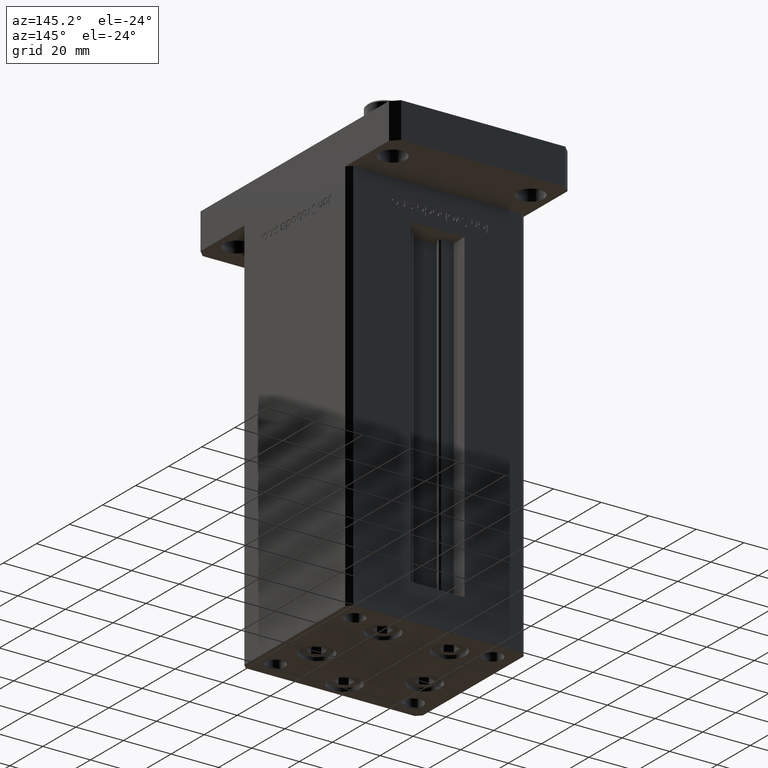
[diagram: clean part render]
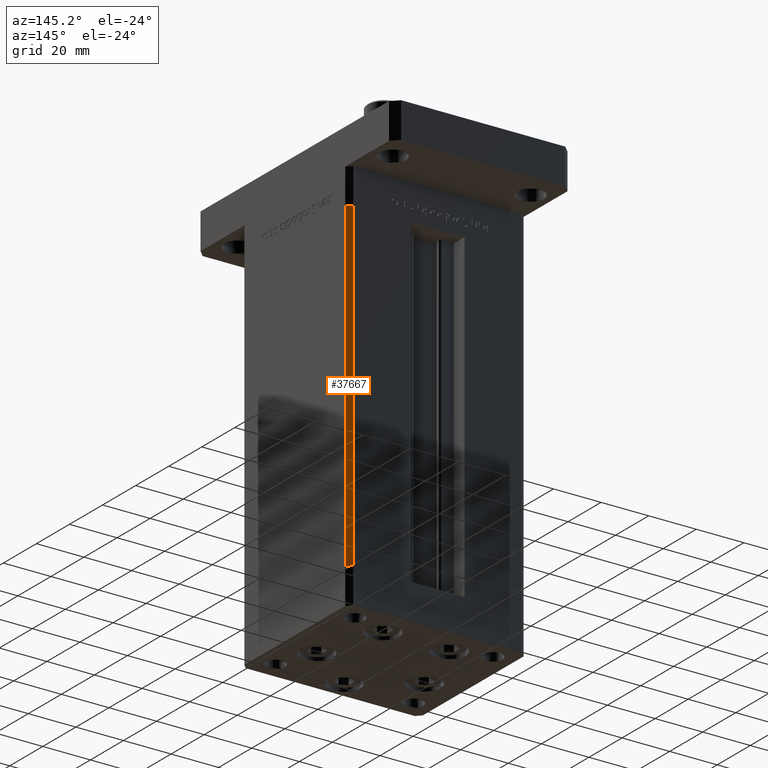
[diagram: same view with one face highlighted and labeled with its STEP entity id]
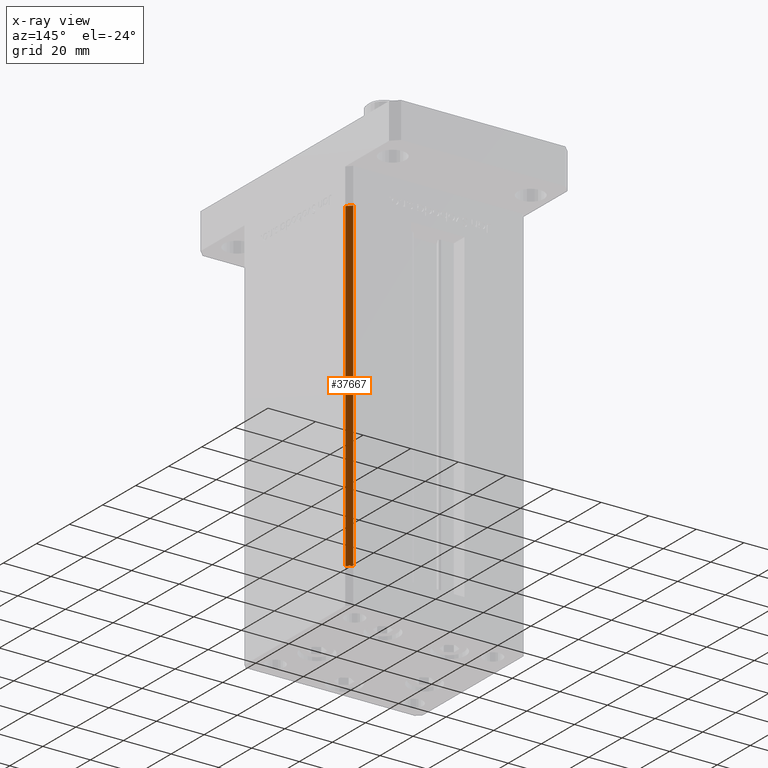
[diagram: x-ray of the same camera — body ghosted, the highlighted face saturated]
A machine part, auxiliary view. The second image highlights one B-rep face of the part: STEP entity #37667.
The next image is the same camera in x-ray: the body ghosted, the highlighted face saturated — about 0% of this face is hidden behind the body in this view.
In plain terms, the highlighted planar face has unit normal (0.7071, 0.7071, 0).
Its self-contained STEP definition (entity closure, byte-faithful):
#296 = DIRECTION ( 'NONE',  ( 0.7071067811865451302, 0.7071067811865500152, -0.000000000000000000 ) ) ;
#1226 = ORIENTED_EDGE ( 'NONE', *, *, #4799, .T. ) ;
#1324 = VECTOR ( 'NONE', #43741, 1000.000000000000000 ) ;
#4728 = ORIENTED_EDGE ( 'NONE', *, *, #17547, .F. ) ;
#4799 = EDGE_CURVE ( 'NONE', #29821, #20999, #52788, .T. ) ;
#7502 = VECTOR ( 'NONE', #17471, 1000.000000000000114 ) ;
#10610 = CARTESIAN_POINT ( 'NONE',  ( 37.50000000000000711, 30.50000000000000000, 136.0000000000000000 ) ) ;
#11270 = DIRECTION ( 'NONE',  ( 0.7071067811865500152, -0.7071067811865451302, 0.000000000000000000 ) ) ;
#11681 = ORIENTED_EDGE ( 'NONE', *, *, #27561, .T. ) ;
#16964 = FACE_OUTER_BOUND ( 'NONE', #25013, .T. ) ;
#17471 = DIRECTION ( 'NONE',  ( 0.7071067811865500152, -0.7071067811865451302, 0.000000000000000000 ) ) ;
#17547 = EDGE_CURVE ( 'NONE', #43366, #21806, #18291, .T. ) ;
#18291 = LINE ( 'NONE', #34946, #7502 ) ;
#20858 = VECTOR ( 'NONE', #11270, 1000.000000000000114 ) ;
#20999 = VERTEX_POINT ( 'NONE', #27219 ) ;
#21806 = VERTEX_POINT ( 'NONE', #43301 ) ;
#21887 = CARTESIAN_POINT ( 'NONE',  ( 35.50000000000000000, 32.49999999999999289, 136.0000000000000000 ) ) ;
#24366 = DIRECTION ( 'NONE',  ( -0.7071067811865500152, 0.7071067811865451302, 0.000000000000000000 ) ) ;
#25013 = EDGE_LOOP ( 'NONE', ( #4728, #34650, #1226, #11681 ) ) ;
#27083 = CARTESIAN_POINT ( 'NONE',  ( 35.50000000000000000, 32.49999999999999289, 136.0000000000000000 ) ) ;
#27219 = CARTESIAN_POINT ( 'NONE',  ( 37.50000000000000711, 30.50000000000000000, 136.0000000000000000 ) ) ;
#27301 = EDGE_CURVE ( 'NONE', #29821, #43366, #31168, .T. ) ;
#27561 = EDGE_CURVE ( 'NONE', #20999, #21806, #51047, .T. ) ;
#29821 = VERTEX_POINT ( 'NONE', #21887 ) ;
#31168 = LINE ( 'NONE', #27083, #1324 ) ;
#33071 = AXIS2_PLACEMENT_3D ( 'NONE', #45389, #296, #24366 ) ;
#34650 = ORIENTED_EDGE ( 'NONE', *, *, #27301, .F. ) ;
#34946 = CARTESIAN_POINT ( 'NONE',  ( 35.50000000000000000, 32.49999999999999289, 0.000000000000000000 ) ) ;
#36653 = PLANE ( 'NONE',  #33071 ) ;
#37667 = ADVANCED_FACE ( 'NONE', ( #16964 ), #36653, .T. ) ;
#43301 = CARTESIAN_POINT ( 'NONE',  ( 37.50000000000000711, 30.50000000000000000, 0.000000000000000000 ) ) ;
#43366 = VERTEX_POINT ( 'NONE', #53149 ) ;
#43741 = DIRECTION ( 'NONE',  ( -0.000000000000000000, -0.000000000000000000, -1.000000000000000000 ) ) ;
#43934 = DIRECTION ( 'NONE',  ( -0.000000000000000000, -0.000000000000000000, -1.000000000000000000 ) ) ;
#45389 = CARTESIAN_POINT ( 'NONE',  ( 35.50000000000000000, 32.49999999999999289, 136.0000000000000000 ) ) ;
#51047 = LINE ( 'NONE', #10610, #52807 ) ;
#52788 = LINE ( 'NONE', #53866, #20858 ) ;
#52807 = VECTOR ( 'NONE', #43934, 1000.000000000000000 ) ;
#53149 = CARTESIAN_POINT ( 'NONE',  ( 35.50000000000000000, 32.49999999999999289, 0.000000000000000000 ) ) ;
#53866 = CARTESIAN_POINT ( 'NONE',  ( 35.50000000000000000, 32.49999999999999289, 136.0000000000000000 ) ) ;